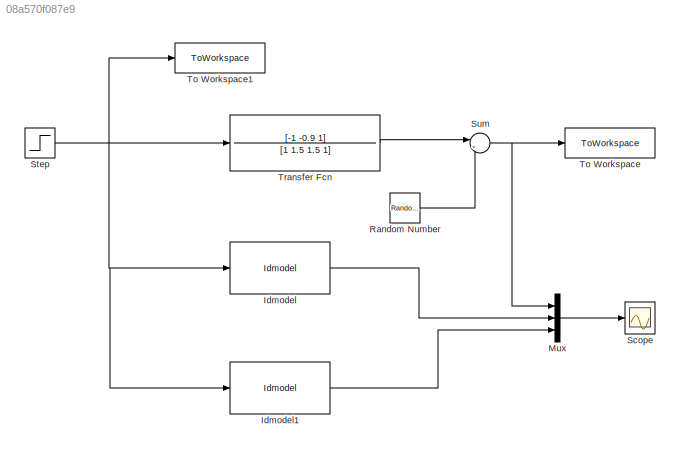
MODEL slx_08a570f087e9
KIND model
CONFIG AbsTol = auto
CONFIG EnableMultiTasking = off
CONFIG FixedStep = 0.001
CONFIG MaxStep = auto
CONFIG MinStep = auto
CONFIG RelTol = 1e-3
CONFIG SampleTimeConstraint = Unconstrained
CONFIG Solver = FixedStepAuto
CONFIG SolverName = FixedStepAuto
CONFIG StartTime = 0.0
CONFIG StopTime = 20
BLOCK [Reference] Idmodel  REF=slident/Models/Idmodel  (lib defined in mdl_f7d4911ca73a)
  Ports = [1, 1]
  SourceBlock = slident/Models/Idmodel
  SourceProductBaseCode = ID
  SourceProductName = System Identification Toolbox
  SourceType = Idmodel Block
BLOCK [Reference] Idmodel1  REF=slident/Models/Idmodel  (lib defined in mdl_f7d4911ca73a)
  Commented = on
  Ports = [1, 1]
  SourceBlock = slident/Models/Idmodel
  SourceProductBaseCode = ID
  SourceProductName = System Identification Toolbox
  SourceType = Idmodel Block
BLOCK [Mux] Mux
  DisplayOption = bar
  Inputs = 3
  Ports = [3, 1]
BLOCK [RandomNumber] Random Number
  SampleTime = 0.001
  Variance = 0.001
BLOCK [Scope] Scope
  Floating = off
  NumInputPorts = 1
  Ports = [1]
  ScopeSpecificationString = Simulink.scopes.TimeScopeBlockCfg('CurrentConfiguration', extmgr.ConfigurationSet(extmgr.Configuration('Core','General UI',true),extmgr.Configuration('Core','Source UI',true),extmgr.Configuration('Sources','WiredSimulink',true),extmgr.Configuration('Visuals','Time Domain',true,'SerializedDisplays',{struct('MinYLimReal','-1.88211','MaxYLimReal','4.44831','YLabelReal','','MinYLimMag','0.00000','MaxY...<+1564ch>
BLOCK [Step] Step
  SampleTime = 0.001
BLOCK [Sum] Sum
  IconShape = round
  InputSameDT = off
  Inputs = |++
  OutDataTypeStr = Inherit: Inherit via internal rule
  Ports = [2, 1]
  SaturateOnIntegerOverflow = off
BLOCK [ToWorkspace] To Workspace
  FixptAsFi = on
  MaxDataPoints = inf
  Ports = [1]
  SampleTime = -1
  VariableName = outnoise
BLOCK [ToWorkspace] To Workspace1
  FixptAsFi = on
  MaxDataPoints = inf
  Ports = [1]
  SampleTime = -1
  VariableName = input
BLOCK [TransferFcn] Transfer Fcn
  Denominator = [1 1.5 1.5 1]
  Numerator = [-1 -0.9 1]
LINE Idmodel1:1 -> Mux:3
LINE Idmodel:1 -> Mux:2
LINE Mux:1 -> Scope:1
LINE Random Number:1 -> Sum:2
NET Step:1 -> Idmodel1:1, Idmodel:1, To Workspace1:1, Transfer Fcn:1
NET Sum:1 -> Mux:1, To Workspace:1
LINE Transfer Fcn:1 -> Sum:1
note: NET lines group one-source signal fan-out (src -> all destinations, sorted); 1:1 wires keep LINE
